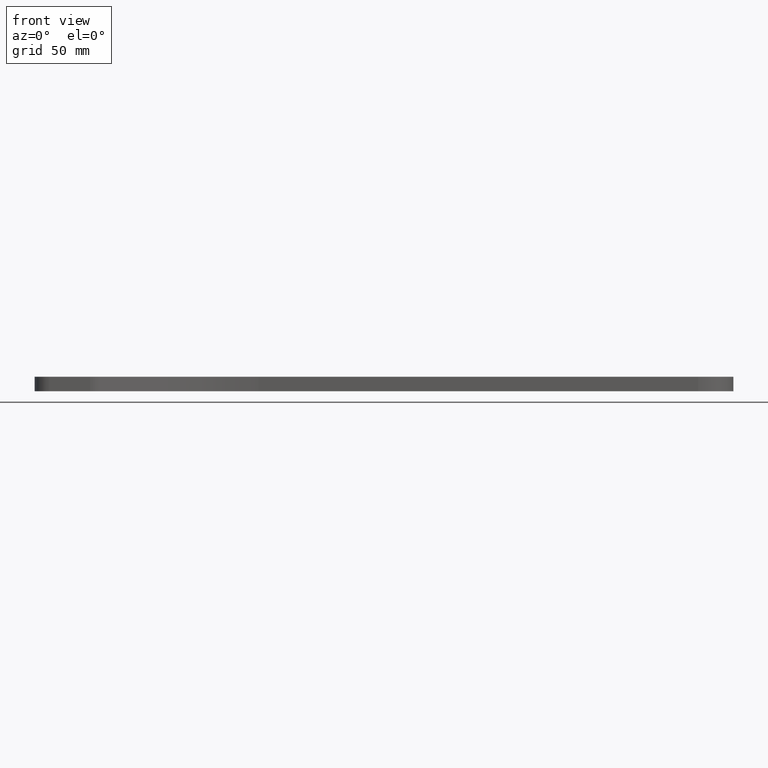
[diagram: clean part render]
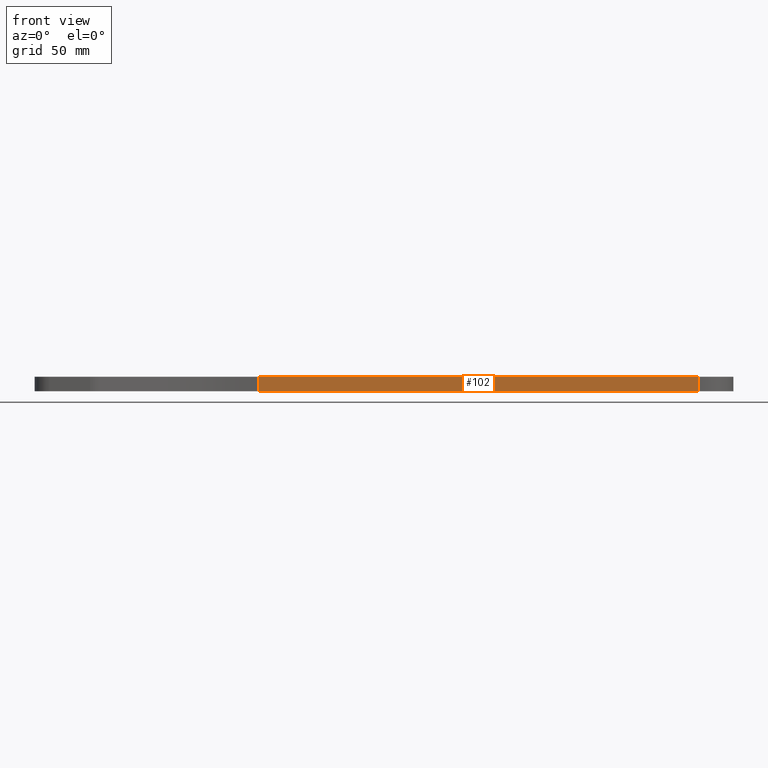
[diagram: same view with one face highlighted and labeled with its STEP entity id]
A machine part, front view. The second image highlights one B-rep face of the part: STEP entity #102.
In plain terms, the highlighted planar face has unit normal (0.0167, -0.9999, 0).
Its self-contained STEP definition (entity closure, byte-faithful):
#6 = EDGE_CURVE ( 'NONE', #183, #1409, #1037, .T. ) ;
#50 = ORIENTED_EDGE ( 'NONE', *, *, #880, .T. ) ;
#61 = VECTOR ( 'NONE', #1288, 1000.000000000000000 ) ;
#102 = ADVANCED_FACE ( 'NONE', ( #1262 ), #1105, .T. ) ;
#161 = CARTESIAN_POINT ( 'NONE',  ( 272.2333643259391900, -14.99791652477024000, 6.000000000000000000 ) ) ;
#183 = VERTEX_POINT ( 'NONE', #1247 ) ;
#203 = EDGE_CURVE ( 'NONE', #305, #688, #1146, .T. ) ;
#305 = VERTEX_POINT ( 'NONE', #1325 ) ;
#326 = CARTESIAN_POINT ( 'NONE',  ( 272.2333643272491500, -14.99791652196641500, 3.000000000000000000 ) ) ;
#346 = CARTESIAN_POINT ( 'NONE',  ( 89.75082507700001600, -18.03971467699999900, 0.0000000000000000000 ) ) ;
#348 = EDGE_CURVE ( 'NONE', #688, #1409, #907, .T. ) ;
#360 = CARTESIAN_POINT ( 'NONE',  ( 89.75082507700001600, -18.03971467699999900, 0.0000000000000000000 ) ) ;
#433 = LINE ( 'NONE', #630, #61 ) ;
#448 = DIRECTION ( 'NONE',  ( -0.0000000000000000000, -0.0000000000000000000, 1.000000000000000000 ) ) ;
#467 = DIRECTION ( 'NONE',  ( 0.01666666666406415400, -0.9998611014647530400, 0.0000000000000000000 ) ) ;
#594 = ORIENTED_EDGE ( 'NONE', *, *, #203, .T. ) ;
#621 = AXIS2_PLACEMENT_3D ( 'NONE', #346, #467, #1349 ) ;
#630 = CARTESIAN_POINT ( 'NONE',  ( 89.75082507700001600, -18.03971467699999900, 3.000000000000000000 ) ) ;
#688 = VERTEX_POINT ( 'NONE', #1051 ) ;
#690 = VECTOR ( 'NONE', #1402, 1000.000000000000200 ) ;
#793 = VECTOR ( 'NONE', #1590, 1000.000000000000100 ) ;
#880 = EDGE_CURVE ( 'NONE', #183, #305, #433, .T. ) ;
#907 = LINE ( 'NONE', #326, #1542 ) ;
#1037 = LINE ( 'NONE', #1285, #690 ) ;
#1051 = CARTESIAN_POINT ( 'NONE',  ( 272.2333643271052800, -14.99791652198352700, 0.0000000000000000000 ) ) ;
#1083 = ORIENTED_EDGE ( 'NONE', *, *, #6, .F. ) ;
#1105 = PLANE ( 'NONE',  #621 ) ;
#1146 = LINE ( 'NONE', #360, #793 ) ;
#1247 = CARTESIAN_POINT ( 'NONE',  ( 89.75082508319594900, -18.03971466491087500, 6.000000000000000000 ) ) ;
#1262 = FACE_OUTER_BOUND ( 'NONE', #1601, .T. ) ;
#1285 = CARTESIAN_POINT ( 'NONE',  ( 89.75082502083998300, -18.03971465396442400, 6.000000000000000000 ) ) ;
#1288 = DIRECTION ( 'NONE',  ( -0.0000000000000000000, -0.0000000000000000000, -1.000000000000000000 ) ) ;
#1325 = CARTESIAN_POINT ( 'NONE',  ( 89.75082507693063900, -18.03971467700116800, 0.0000000000000000000 ) ) ;
#1349 = DIRECTION ( 'NONE',  ( 0.9998611014647530400, 0.01666666666406415400, 0.0000000000000000000 ) ) ;
#1402 = DIRECTION ( 'NONE',  ( 0.9998611014674470000, 0.01666666650243792100, 0.0000000000000000000 ) ) ;
#1409 = VERTEX_POINT ( 'NONE', #161 ) ;
#1539 = ORIENTED_EDGE ( 'NONE', *, *, #348, .T. ) ;
#1542 = VECTOR ( 'NONE', #448, 1000.000000000000000 ) ;
#1590 = DIRECTION ( 'NONE',  ( 0.9998611014647529300, 0.01666666666406415400, 0.0000000000000000000 ) ) ;
#1601 = EDGE_LOOP ( 'NONE', ( #1083, #50, #594, #1539 ) ) ;